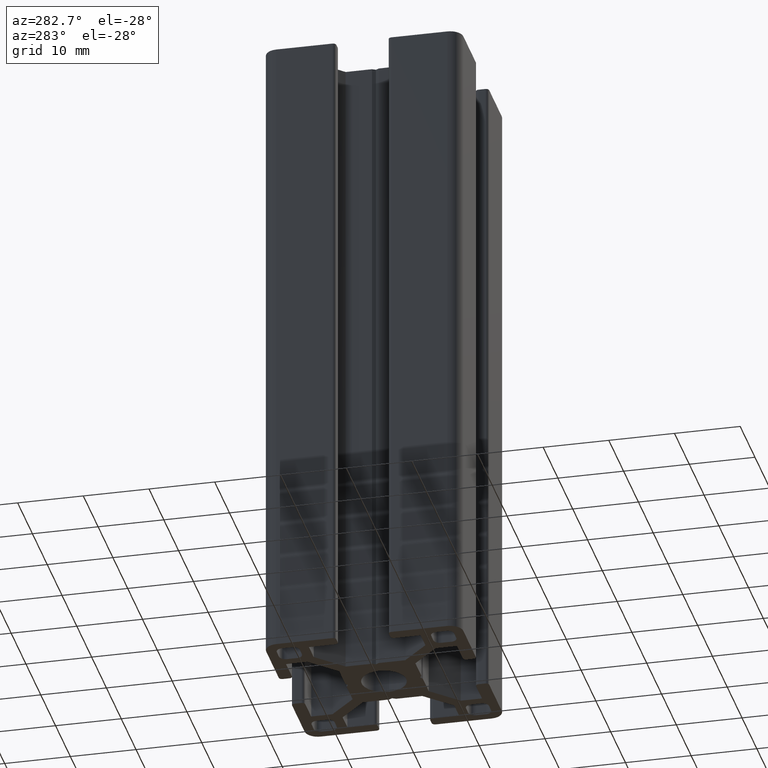
[diagram: clean part render]
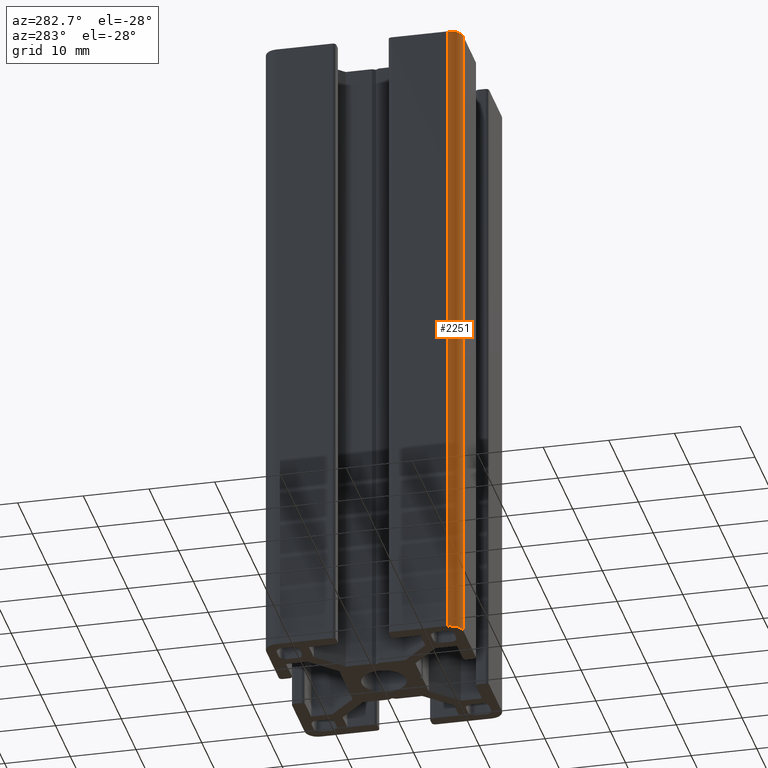
[diagram: same view with one face highlighted and labeled with its STEP entity id]
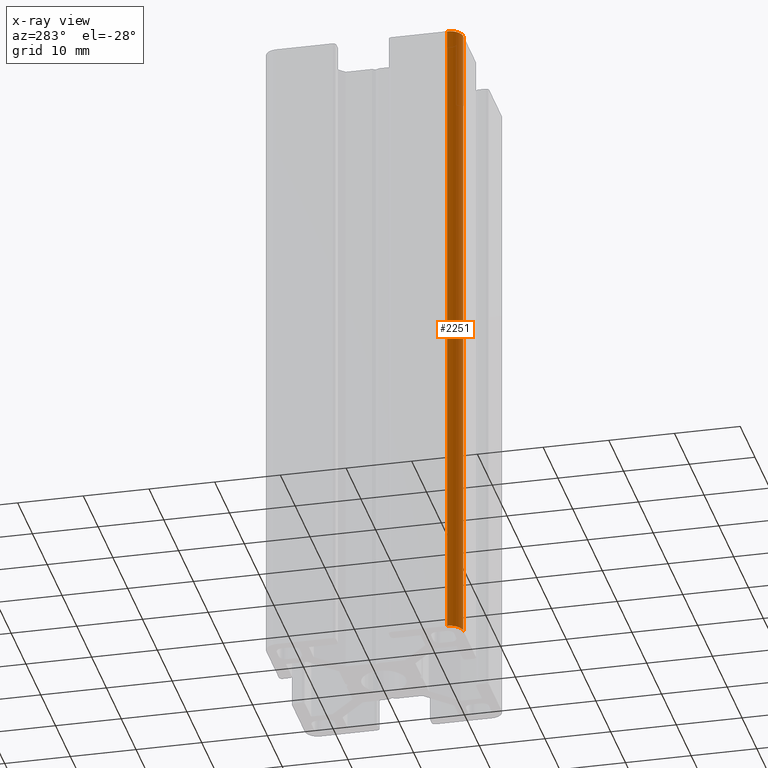
[diagram: x-ray of the same camera — body ghosted, the highlighted face saturated]
A machine part, auxiliary view. The second image highlights one B-rep face of the part: STEP entity #2251.
The next image is the same camera in x-ray: the body ghosted, the highlighted face saturated — about 0% of this face is hidden behind the body in this view.
In plain terms, the highlighted cylindrical surface (edge-blend (fillet) strip) has radius 2 mm, axis along (0, 0, 1).
Its self-contained STEP definition (entity closure, byte-faithful):
#95=CIRCLE('',#2428,2.00000000847673);
#98=CIRCLE('',#2437,2.00000000847673);
#135=CYLINDRICAL_SURFACE('',#2436,2.00000000847673);
#244=FACE_OUTER_BOUND('',#361,.T.);
#361=EDGE_LOOP('',(#1949,#1950,#1951,#1952));
#605=LINE('',#3676,#857);
#620=LINE('',#3716,#872);
#857=VECTOR('',#3011,100.);
#872=VECTOR('',#3056,100.);
#1080=VERTEX_POINT('',#3673);
#1081=VERTEX_POINT('',#3675);
#1087=VERTEX_POINT('',#3694);
#1091=VERTEX_POINT('',#3714);
#1393=EDGE_CURVE('',#1081,#1080,#605,.T.);
#1404=EDGE_CURVE('',#1081,#1087,#95,.T.);
#1414=EDGE_CURVE('',#1080,#1091,#98,.T.);
#1415=EDGE_CURVE('',#1087,#1091,#620,.T.);
#1949=ORIENTED_EDGE('',*,*,#1414,.T.);
#1950=ORIENTED_EDGE('',*,*,#1415,.F.);
#1951=ORIENTED_EDGE('',*,*,#1404,.F.);
#1952=ORIENTED_EDGE('',*,*,#1393,.T.);
#2251=ADVANCED_FACE('',(#244),#135,.T.);
#2428=AXIS2_PLACEMENT_3D('',#3695,#3029,#3030);
#2436=AXIS2_PLACEMENT_3D('',#3713,#3052,#3053);
#2437=AXIS2_PLACEMENT_3D('',#3715,#3054,#3055);
#3011=DIRECTION('',(0.,0.,1.));
#3029=DIRECTION('center_axis',(0.,0.,-1.));
#3030=DIRECTION('ref_axis',(1.,0.,0.));
#3052=DIRECTION('center_axis',(0.,0.,1.));
#3053=DIRECTION('ref_axis',(1.,0.,0.));
#3054=DIRECTION('center_axis',(0.,0.,-1.));
#3055=DIRECTION('ref_axis',(1.,0.,0.));
#3056=DIRECTION('',(0.,0.,1.));
#3673=CARTESIAN_POINT('',(-12.9999999915233,-14.9999999955443,100.));
#3675=CARTESIAN_POINT('',(-12.9999999915233,-14.9999999955443,0.));
#3676=CARTESIAN_POINT('',(-12.9999999915233,-14.9999999955443,0.));
#3694=CARTESIAN_POINT('',(-15.,-12.9999999870676,0.));
#3695=CARTESIAN_POINT('Origin',(-12.9999999915233,-12.9999999870676,0.));
#3713=CARTESIAN_POINT('Origin',(-12.9999999915233,-12.9999999870676,0.));
#3714=CARTESIAN_POINT('',(-15.,-12.9999999870676,100.));
#3715=CARTESIAN_POINT('Origin',(-12.9999999915233,-12.9999999870676,100.));
#3716=CARTESIAN_POINT('',(-15.,-12.9999999870676,0.));